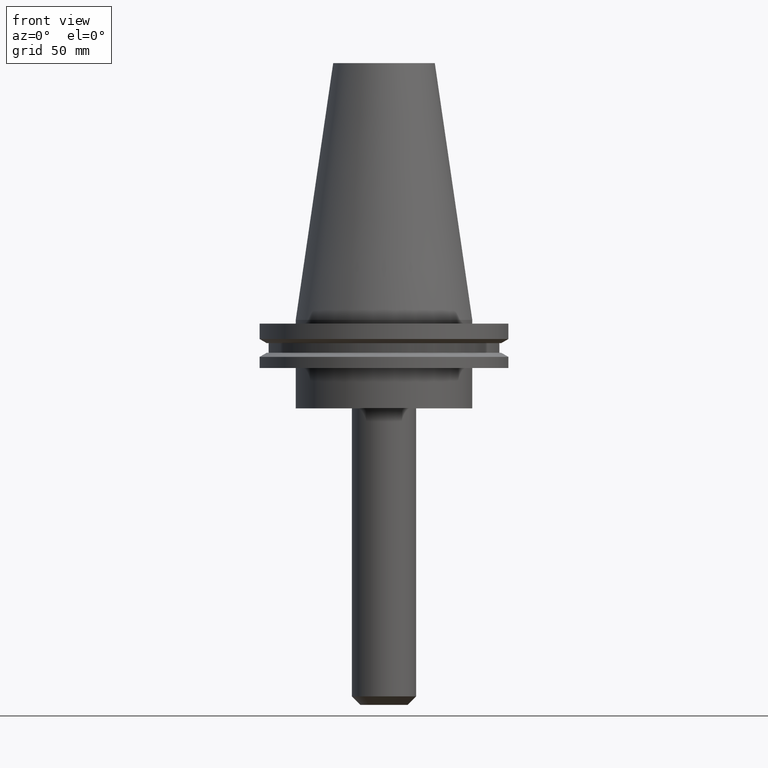
[diagram: clean part render]
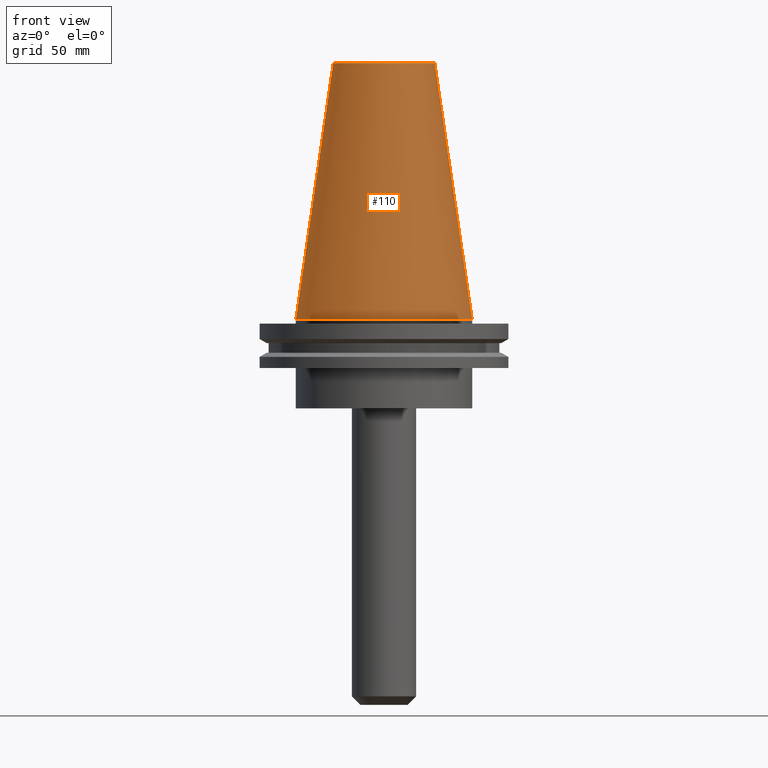
[diagram: same view with one face highlighted and labeled with its STEP entity id]
A machine part, front view. The second image highlights one B-rep face of the part: STEP entity #110.
In plain terms, the highlighted conical surface has half-angle 8.297 deg.
Its self-contained STEP definition (entity closure, byte-faithful):
#25 = VERTEX_POINT ( 'NONE', #414 ) ;
#46 = LINE ( 'NONE', #247, #603 ) ;
#87 = ORIENTED_EDGE ( 'NONE', *, *, #348, .T. ) ;
#96 = EDGE_LOOP ( 'NONE', ( #367, #182, #845, #87 ) ) ;
#99 = AXIS2_PLACEMENT_3D ( 'NONE', #573, #512, #697 ) ;
#100 = CARTESIAN_POINT ( 'NONE',  ( -34.92499999999999005, 0.000000000000000000, 0.000000000000000000 ) ) ;
#110 = ADVANCED_FACE ( 'NONE', ( #377 ), #389, .T. ) ;
#135 = CARTESIAN_POINT ( 'NONE',  ( 34.92499999999999005, 4.277078946022130098E-15, 0.000000000000000000 ) ) ;
#167 = DIRECTION ( 'NONE',  ( 0.1443082272672999988, 1.767266086135277066E-17, -0.9895327864921755756 ) ) ;
#170 = EDGE_CURVE ( 'NONE', #557, #25, #315, .T. ) ;
#182 = ORIENTED_EDGE ( 'NONE', *, *, #565, .F. ) ;
#215 = CARTESIAN_POINT ( 'NONE',  ( 0.000000000000000000, 0.000000000000000000, 0.000000000000000000 ) ) ;
#240 = DIRECTION ( 'NONE',  ( -1.000000000000000000, 0.000000000000000000, 0.000000000000000000 ) ) ;
#247 = CARTESIAN_POINT ( 'NONE',  ( 34.92499999999999005, 4.277078946022130098E-15, 0.000000000000000000 ) ) ;
#256 = CIRCLE ( 'NONE', #393, 34.92499999999999005 ) ;
#282 = DIRECTION ( 'NONE',  ( -0.000000000000000000, -0.000000000000000000, 1.000000000000000000 ) ) ;
#308 = CARTESIAN_POINT ( 'NONE',  ( -20.10819343178871321, 0.000000000000000000, 101.5999999999999801 ) ) ;
#315 = LINE ( 'NONE', #100, #826 ) ;
#343 = VERTEX_POINT ( 'NONE', #489 ) ;
#348 = EDGE_CURVE ( 'NONE', #25, #642, #256, .T. ) ;
#367 = ORIENTED_EDGE ( 'NONE', *, *, #537, .F. ) ;
#377 = FACE_OUTER_BOUND ( 'NONE', #96, .T. ) ;
#389 = CONICAL_SURFACE ( 'NONE', #617, 34.92499999999999005, 0.1448138465474119452 ) ;
#393 = AXIS2_PLACEMENT_3D ( 'NONE', #215, #282, #738 ) ;
#414 = CARTESIAN_POINT ( 'NONE',  ( -34.92499999999999005, 0.000000000000000000, 0.000000000000000000 ) ) ;
#453 = CARTESIAN_POINT ( 'NONE',  ( 0.000000000000000000, 0.000000000000000000, 0.000000000000000000 ) ) ;
#489 = CARTESIAN_POINT ( 'NONE',  ( 20.10819343178871321, 3.369811209154858606E-15, 101.5999999999999801 ) ) ;
#512 = DIRECTION ( 'NONE',  ( -0.000000000000000000, -0.000000000000000000, 1.000000000000000000 ) ) ;
#537 = EDGE_CURVE ( 'NONE', #343, #642, #46, .T. ) ;
#557 = VERTEX_POINT ( 'NONE', #308 ) ;
#565 = EDGE_CURVE ( 'NONE', #557, #343, #735, .T. ) ;
#573 = CARTESIAN_POINT ( 'NONE',  ( 0.000000000000000000, 0.000000000000000000, 101.5999999999999801 ) ) ;
#603 = VECTOR ( 'NONE', #167, 999.9999999999998863 ) ;
#617 = AXIS2_PLACEMENT_3D ( 'NONE', #453, #768, #240 ) ;
#642 = VERTEX_POINT ( 'NONE', #135 ) ;
#697 = DIRECTION ( 'NONE',  ( 1.000000000000000000, 0.000000000000000000, 0.000000000000000000 ) ) ;
#735 = CIRCLE ( 'NONE', #99, 20.10819343178871321 ) ;
#738 = DIRECTION ( 'NONE',  ( 1.000000000000000000, 0.000000000000000000, 0.000000000000000000 ) ) ;
#768 = DIRECTION ( 'NONE',  ( 0.000000000000000000, 0.000000000000000000, -1.000000000000000000 ) ) ;
#826 = VECTOR ( 'NONE', #831, 999.9999999999998863 ) ;
#831 = DIRECTION ( 'NONE',  ( -0.1443082272672999988, 0.000000000000000000, -0.9895327864921755756 ) ) ;
#845 = ORIENTED_EDGE ( 'NONE', *, *, #170, .T. ) ;